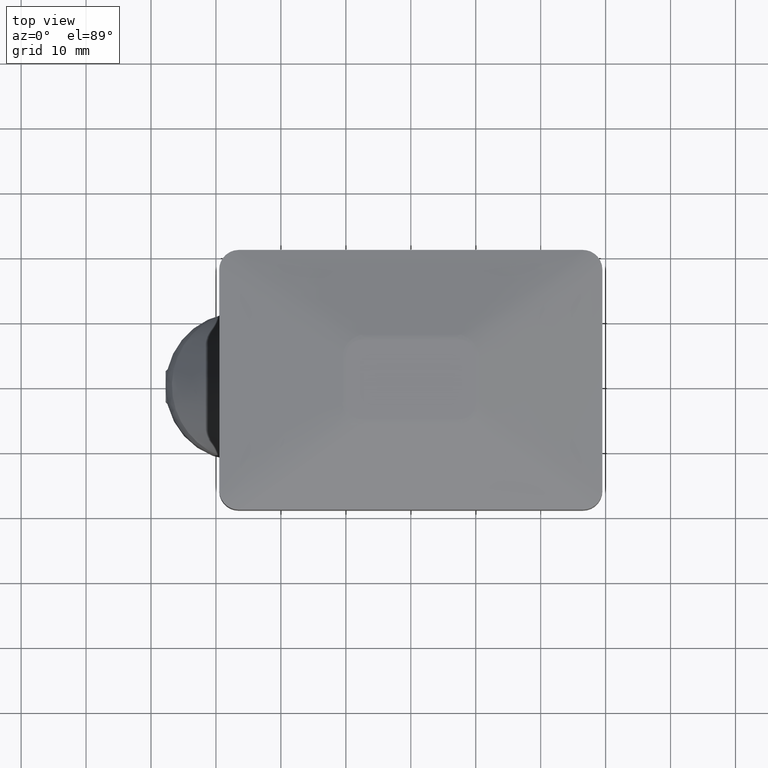
[diagram: clean part render]
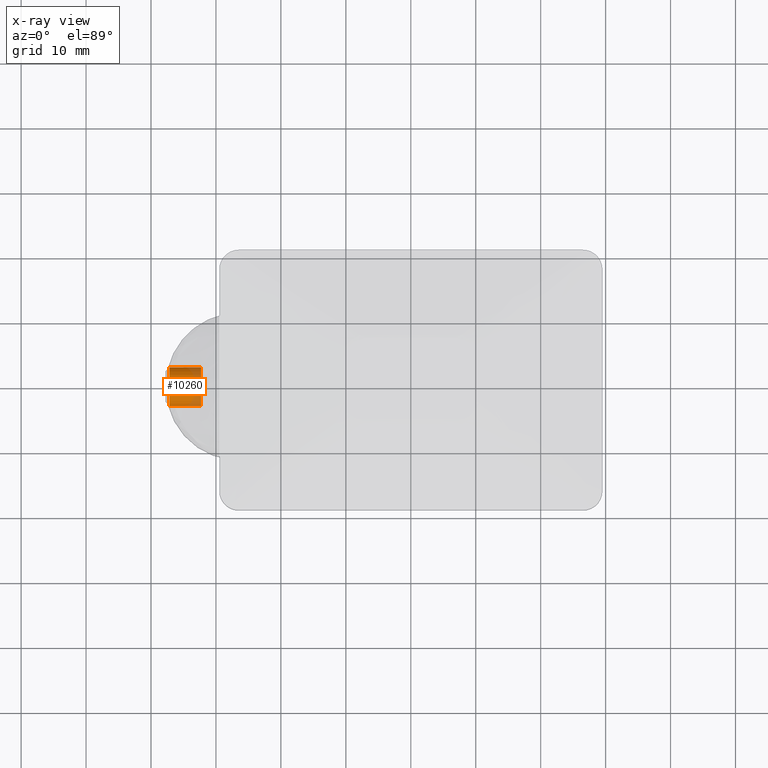
[diagram: x-ray — body ghosted, one internal face saturated and labeled with its STEP entity id]
A machine part, top view, then the same camera in x-ray: the body is ghosted and one INTERNAL B-rep face — a face not visible from any outside direction — is saturated and labeled: STEP entity #10260.
In plain terms, the highlighted cylindrical surface (bore or boss wall) has radius 3 mm, axis along (1, 0, 0).
Its self-contained STEP definition (entity closure, byte-faithful):
#229 = DIRECTION ( 'NONE',  ( 0.000000000000000000, 0.000000000000000000, -1.000000000000000000 ) ) ;
#1452 = DIRECTION ( 'NONE',  ( -1.000000000000000000, 0.000000000000000000, 0.000000000000000000 ) ) ;
#2275 = AXIS2_PLACEMENT_3D ( 'NONE', #13151, #14485, #6103 ) ;
#2499 = CARTESIAN_POINT ( 'NONE',  ( 7.399999999999998579, 0.000000000000000000, -3.000000000000000444 ) ) ;
#2582 = FACE_OUTER_BOUND ( 'NONE', #9541, .T. ) ;
#3238 = DIRECTION ( 'NONE',  ( 0.000000000000000000, 0.000000000000000000, 1.000000000000000000 ) ) ;
#5956 = CARTESIAN_POINT ( 'NONE',  ( 8.000000000000000000, 0.000000000000000000, 0.000000000000000000 ) ) ;
#6103 = DIRECTION ( 'NONE',  ( 0.000000000000000000, 0.000000000000000000, 1.000000000000000000 ) ) ;
#7368 = DIRECTION ( 'NONE',  ( -1.000000000000000000, -0.000000000000000000, -0.000000000000000000 ) ) ;
#9541 = EDGE_LOOP ( 'NONE', ( #18176 ) ) ;
#9570 = AXIS2_PLACEMENT_3D ( 'NONE', #5956, #7368, #3238 ) ;
#10260 = ADVANCED_FACE ( 'NONE', ( #2582, #10492 ), #17271, .T. ) ;
#10487 = EDGE_CURVE ( 'NONE', #14296, #14296, #13551, .T. ) ;
#10492 = FACE_OUTER_BOUND ( 'NONE', #17965, .T. ) ;
#10512 = EDGE_CURVE ( 'NONE', #14706, #14706, #13990, .T. ) ;
#13151 = CARTESIAN_POINT ( 'NONE',  ( 2.549999999999970512, 0.000000000000000000, 0.000000000000000000 ) ) ;
#13551 = CIRCLE ( 'NONE', #2275, 3.000000000000000444 ) ;
#13574 = AXIS2_PLACEMENT_3D ( 'NONE', #14543, #1452, #229 ) ;
#13990 = CIRCLE ( 'NONE', #13574, 3.000000000000000444 ) ;
#14296 = VERTEX_POINT ( 'NONE', #16539 ) ;
#14485 = DIRECTION ( 'NONE',  ( -1.000000000000000000, -0.000000000000000000, -0.000000000000000000 ) ) ;
#14523 = ORIENTED_EDGE ( 'NONE', *, *, #10487, .F. ) ;
#14543 = CARTESIAN_POINT ( 'NONE',  ( 7.399999999999998579, 0.000000000000000000, 0.000000000000000000 ) ) ;
#14706 = VERTEX_POINT ( 'NONE', #2499 ) ;
#16539 = CARTESIAN_POINT ( 'NONE',  ( 2.549999999999970512, 0.000000000000000000, 3.000000000000000444 ) ) ;
#17271 = CYLINDRICAL_SURFACE ( 'NONE', #9570, 3.000000000000000444 ) ;
#17965 = EDGE_LOOP ( 'NONE', ( #14523 ) ) ;
#18176 = ORIENTED_EDGE ( 'NONE', *, *, #10512, .T. ) ;